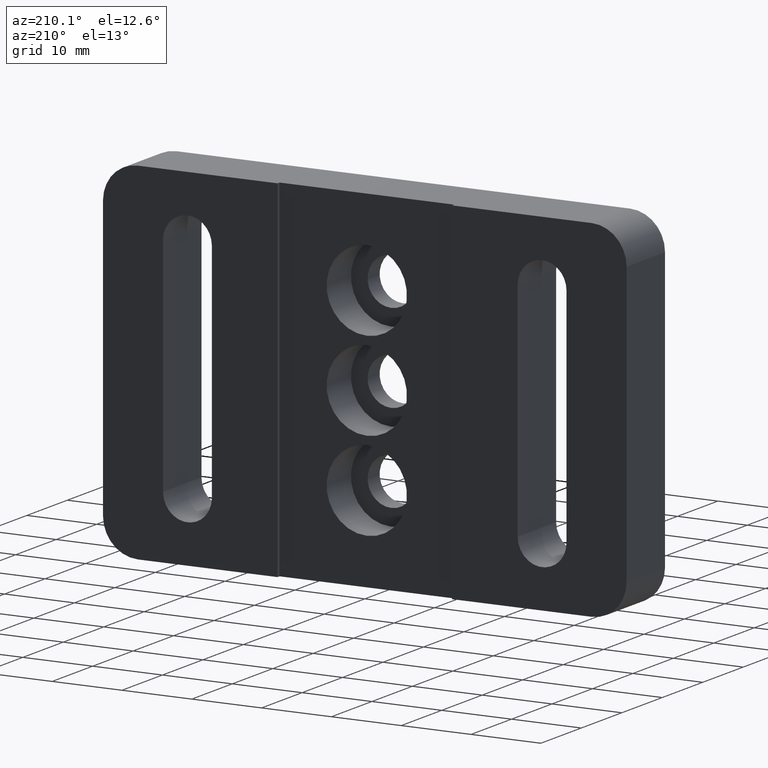
[diagram: clean part render]
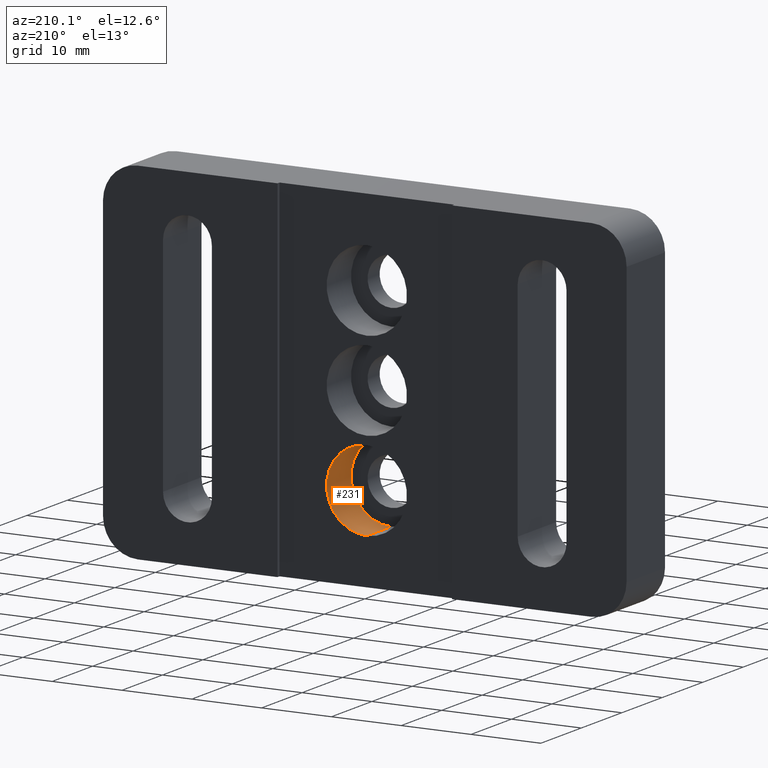
[diagram: same view with one face highlighted and labeled with its STEP entity id]
A machine part, auxiliary view. The second image highlights one B-rep face of the part: STEP entity #231.
In plain terms, the highlighted cylindrical surface (partial cylindrical patch) has radius 5.7544 mm, axis along (-0, 1, -0).
Its self-contained STEP definition (entity closure, byte-faithful):
#42 = VERTEX_POINT ( 'NONE', #719 ) ;
#83 = LINE ( 'NONE', #659, #1156 ) ;
#96 = EDGE_CURVE ( 'NONE', #979, #1078, #83, .T. ) ;
#120 = CARTESIAN_POINT ( 'NONE',  ( 7.047070801609556300E-016, -6.519799999999999200, -18.45436999999999700 ) ) ;
#152 = DIRECTION ( 'NONE',  ( -0.0000000000000000000, 1.000000000000000000, -0.0000000000000000000 ) ) ;
#161 = AXIS2_PLACEMENT_3D ( 'NONE', #194, #298, #398 ) ;
#173 = VERTEX_POINT ( 'NONE', #1236 ) ;
#194 = CARTESIAN_POINT ( 'NONE',  ( 0.0000000000000000000, -0.5000000000000000000, -12.69999999999999900 ) ) ;
#231 = ADVANCED_FACE ( 'NONE', ( #1189 ), #597, .F. ) ;
#298 = DIRECTION ( 'NONE',  ( -0.0000000000000000000, 1.000000000000000000, -0.0000000000000000000 ) ) ;
#398 = DIRECTION ( 'NONE',  ( 0.0000000000000000000, 0.0000000000000000000, 1.000000000000000000 ) ) ;
#415 = DIRECTION ( 'NONE',  ( 0.0000000000000000000, 0.0000000000000000000, 1.000000000000000000 ) ) ;
#466 = ORIENTED_EDGE ( 'NONE', *, *, #641, .T. ) ;
#475 = DIRECTION ( 'NONE',  ( -0.0000000000000000000, 1.000000000000000000, -0.0000000000000000000 ) ) ;
#483 = CARTESIAN_POINT ( 'NONE',  ( 7.047070801609556300E-016, -0.5000000000000000000, -18.45436999999999700 ) ) ;
#493 = EDGE_CURVE ( 'NONE', #42, #1078, #1124, .T. ) ;
#496 = ORIENTED_EDGE ( 'NONE', *, *, #1079, .F. ) ;
#498 = AXIS2_PLACEMENT_3D ( 'NONE', #684, #475, #1280 ) ;
#502 = AXIS2_PLACEMENT_3D ( 'NONE', #1277, #152, #415 ) ;
#548 = VECTOR ( 'NONE', #1223, 1000.000000000000000 ) ;
#597 = CYLINDRICAL_SURFACE ( 'NONE', #502, 5.754369999999999800 ) ;
#641 = EDGE_CURVE ( 'NONE', #173, #42, #1274, .T. ) ;
#653 = DIRECTION ( 'NONE',  ( -0.0000000000000000000, 1.000000000000000000, -0.0000000000000000000 ) ) ;
#659 = CARTESIAN_POINT ( 'NONE',  ( 7.047070801609554300E-016, -0.5000000000000000000, -18.45436999999999700 ) ) ;
#684 = CARTESIAN_POINT ( 'NONE',  ( 0.0000000000000000000, -6.519799999999999200, -12.69999999999999900 ) ) ;
#719 = CARTESIAN_POINT ( 'NONE',  ( 0.0000000000000000000, -0.5000000000000000000, -6.945629999999999500 ) ) ;
#979 = VERTEX_POINT ( 'NONE', #120 ) ;
#1078 = VERTEX_POINT ( 'NONE', #483 ) ;
#1079 = EDGE_CURVE ( 'NONE', #173, #979, #1304, .T. ) ;
#1094 = ORIENTED_EDGE ( 'NONE', *, *, #493, .T. ) ;
#1100 = EDGE_LOOP ( 'NONE', ( #1138, #496, #466, #1094 ) ) ;
#1124 = CIRCLE ( 'NONE', #161, 5.754369999999999800 ) ;
#1134 = CARTESIAN_POINT ( 'NONE',  ( 0.0000000000000000000, -0.5000000000000000000, -6.945629999999999500 ) ) ;
#1138 = ORIENTED_EDGE ( 'NONE', *, *, #96, .F. ) ;
#1156 = VECTOR ( 'NONE', #653, 1000.000000000000000 ) ;
#1189 = FACE_OUTER_BOUND ( 'NONE', #1100, .T. ) ;
#1223 = DIRECTION ( 'NONE',  ( -0.0000000000000000000, 1.000000000000000000, -0.0000000000000000000 ) ) ;
#1236 = CARTESIAN_POINT ( 'NONE',  ( 0.0000000000000000000, -6.519799999999999200, -6.945630000000000400 ) ) ;
#1274 = LINE ( 'NONE', #1134, #548 ) ;
#1277 = CARTESIAN_POINT ( 'NONE',  ( 0.0000000000000000000, -0.5000000000000000000, -12.69999999999999900 ) ) ;
#1280 = DIRECTION ( 'NONE',  ( 0.0000000000000000000, 0.0000000000000000000, 1.000000000000000000 ) ) ;
#1304 = CIRCLE ( 'NONE', #498, 5.754369999999998900 ) ;